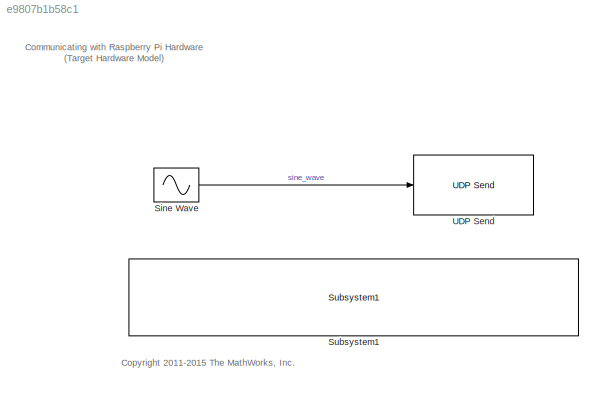
MODEL slx_e9807b1b58c1
KIND model
CONFIG AbsTol = auto
CONFIG EnableMultiTasking = on
CONFIG FixedStep = auto
CONFIG MaxStep = auto
CONFIG MinStep = auto
CONFIG RelTol = 1e-3
CONFIG SampleTimeConstraint = Unconstrained
CONFIG Solver = ode45
CONFIG SolverName = ode45
CONFIG StartTime = 0.0
CONFIG StopTime = 1
BLOCK [Sin] Sine Wave
  Ports = [0, 1]
  SampleTime = 1/100
  Samples = 50
  SineType = Sample based
BLOCK [Reference] Subsystem1  REF=realtime_examples_misc/Subsystem1
  Ports = []
  SourceBlock = realtime_examples_misc/Subsystem1
BLOCK [Reference] UDP Send  REF=embdlinuxlib/UDP Send
  Ports = [1]
  SourceBlock = embdlinuxlib/UDP Send
  SourceProductBaseCode = RASPPI
  SourceProductName = Simulink Support Package for Raspberry Pi Hardware
  SourceType = UDP Send
ANNOTATION (root): Communicating with Raspberry Pi Hardware (Target Hardware Model)
ANNOTATION (root): <copyright redacted>
LINE Sine Wave:1 -> UDP Send:1
